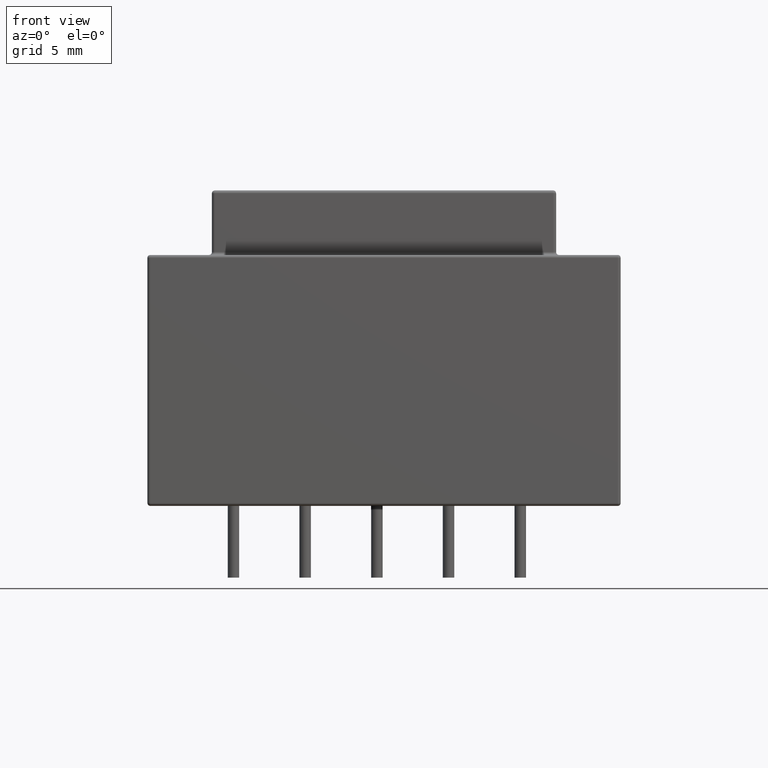
[diagram: clean part render]
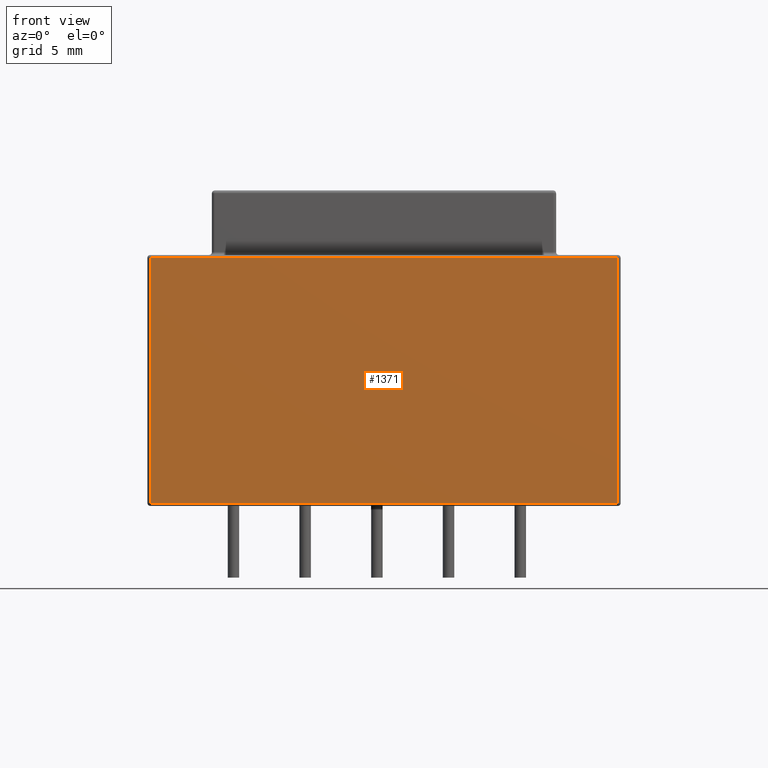
[diagram: same view with one face highlighted and labeled with its STEP entity id]
A machine part, front view. The second image highlights one B-rep face of the part: STEP entity #1371.
In plain terms, the highlighted planar face has unit normal (0, 1, 0).
Its self-contained STEP definition (entity closure, byte-faithful):
#159 = CYLINDRICAL_SURFACE('',#160,0.2);
#160 = AXIS2_PLACEMENT_3D('',#161,#162,#163);
#161 = CARTESIAN_POINT('',(0.,0.2,0.2));
#162 = DIRECTION('',(1.,0.,0.));
#163 = DIRECTION('',(0.,-1.,0.));
#564 = VERTEX_POINT('',#565);
#565 = CARTESIAN_POINT('',(0.2,-2.775557561563E-17,0.2));
#587 = VERTEX_POINT('',#588);
#588 = CARTESIAN_POINT('',(32.8,-2.775557561563E-17,0.2));
#613 = EDGE_CURVE('',#564,#587,#614,.T.);
#614 = SURFACE_CURVE('',#615,(#619,#626),.PCURVE_S1.);
#615 = LINE('',#616,#617);
#616 = CARTESIAN_POINT('',(0.,-2.775557561563E-17,0.2));
#617 = VECTOR('',#618,1.);
#618 = DIRECTION('',(1.,0.,0.));
#619 = PCURVE('',#159,#620);
#620 = DEFINITIONAL_REPRESENTATION('',(#621),#625);
#621 = LINE('',#622,#623);
#622 = CARTESIAN_POINT('',(0.,0.));
#623 = VECTOR('',#624,1.);
#624 = DIRECTION('',(0.,1.));
#625 = ( GEOMETRIC_REPRESENTATION_CONTEXT(2) 
PARAMETRIC_REPRESENTATION_CONTEXT() REPRESENTATION_CONTEXT('2D SPACE',''
  ) );
#626 = PCURVE('',#627,#632);
#627 = PLANE('',#628);
#628 = AXIS2_PLACEMENT_3D('',#629,#630,#631);
#629 = CARTESIAN_POINT('',(0.,0.,0.));
#630 = DIRECTION('',(0.,1.,0.));
#631 = DIRECTION('',(0.,0.,1.));
#632 = DEFINITIONAL_REPRESENTATION('',(#633),#637);
#633 = LINE('',#634,#635);
#634 = CARTESIAN_POINT('',(0.2,0.));
#635 = VECTOR('',#636,1.);
#636 = DIRECTION('',(0.,1.));
#637 = ( GEOMETRIC_REPRESENTATION_CONTEXT(2) 
PARAMETRIC_REPRESENTATION_CONTEXT() REPRESENTATION_CONTEXT('2D SPACE',''
  ) );
#1252 = CYLINDRICAL_SURFACE('',#1253,0.2);
#1253 = AXIS2_PLACEMENT_3D('',#1254,#1255,#1256);
#1254 = CARTESIAN_POINT('',(0.2,0.2,0.));
#1255 = DIRECTION('',(0.,0.,1.));
#1256 = DIRECTION('',(-1.,0.,0.));
#1371 = ADVANCED_FACE('',(#1372),#627,.F.);
#1372 = FACE_BOUND('',#1373,.F.);
#1373 = EDGE_LOOP('',(#1374,#1397,#1425,#1451));
#1374 = ORIENTED_EDGE('',*,*,#1375,.T.);
#1375 = EDGE_CURVE('',#564,#1376,#1378,.T.);
#1376 = VERTEX_POINT('',#1377);
#1377 = CARTESIAN_POINT('',(0.2,-2.775557561563E-17,17.3));
#1378 = SURFACE_CURVE('',#1379,(#1383,#1390),.PCURVE_S1.);
#1379 = LINE('',#1380,#1381);
#1380 = CARTESIAN_POINT('',(0.2,-2.775557561563E-17,0.));
#1381 = VECTOR('',#1382,1.);
#1382 = DIRECTION('',(0.,0.,1.));
#1383 = PCURVE('',#627,#1384);
#1384 = DEFINITIONAL_REPRESENTATION('',(#1385),#1389);
#1385 = LINE('',#1386,#1387);
#1386 = CARTESIAN_POINT('',(0.,0.2));
#1387 = VECTOR('',#1388,1.);
#1388 = DIRECTION('',(1.,0.));
#1389 = ( GEOMETRIC_REPRESENTATION_CONTEXT(2) 
PARAMETRIC_REPRESENTATION_CONTEXT() REPRESENTATION_CONTEXT('2D SPACE',''
  ) );
#1390 = PCURVE('',#1252,#1391);
#1391 = DEFINITIONAL_REPRESENTATION('',(#1392),#1396);
#1392 = LINE('',#1393,#1394);
#1393 = CARTESIAN_POINT('',(1.570796326795,0.));
#1394 = VECTOR('',#1395,1.);
#1395 = DIRECTION('',(0.,1.));
#1396 = ( GEOMETRIC_REPRESENTATION_CONTEXT(2) 
PARAMETRIC_REPRESENTATION_CONTEXT() REPRESENTATION_CONTEXT('2D SPACE',''
  ) );
#1397 = ORIENTED_EDGE('',*,*,#1398,.T.);
#1398 = EDGE_CURVE('',#1376,#1399,#1401,.T.);
#1399 = VERTEX_POINT('',#1400);
#1400 = CARTESIAN_POINT('',(32.8,-2.775557561563E-17,17.3));
#1401 = SURFACE_CURVE('',#1402,(#1406,#1413),.PCURVE_S1.);
#1402 = LINE('',#1403,#1404);
#1403 = CARTESIAN_POINT('',(0.,-2.775557561563E-17,17.3));
#1404 = VECTOR('',#1405,1.);
#1405 = DIRECTION('',(1.,0.,0.));
#1406 = PCURVE('',#627,#1407);
#1407 = DEFINITIONAL_REPRESENTATION('',(#1408),#1412);
#1408 = LINE('',#1409,#1410);
#1409 = CARTESIAN_POINT('',(17.3,0.));
#1410 = VECTOR('',#1411,1.);
#1411 = DIRECTION('',(0.,1.));
#1412 = ( GEOMETRIC_REPRESENTATION_CONTEXT(2) 
PARAMETRIC_REPRESENTATION_CONTEXT() REPRESENTATION_CONTEXT('2D SPACE',''
  ) );
#1413 = PCURVE('',#1414,#1419);
#1414 = CYLINDRICAL_SURFACE('',#1415,0.2);
#1415 = AXIS2_PLACEMENT_3D('',#1416,#1417,#1418);
#1416 = CARTESIAN_POINT('',(0.,0.2,17.3));
#1417 = DIRECTION('',(1.,0.,0.));
#1418 = DIRECTION('',(0.,-1.,0.));
#1419 = DEFINITIONAL_REPRESENTATION('',(#1420),#1424);
#1420 = LINE('',#1421,#1422);
#1421 = CARTESIAN_POINT('',(-0.,0.));
#1422 = VECTOR('',#1423,1.);
#1423 = DIRECTION('',(-0.,1.));
#1424 = ( GEOMETRIC_REPRESENTATION_CONTEXT(2) 
PARAMETRIC_REPRESENTATION_CONTEXT() REPRESENTATION_CONTEXT('2D SPACE',''
  ) );
#1425 = ORIENTED_EDGE('',*,*,#1426,.F.);
#1426 = EDGE_CURVE('',#587,#1399,#1427,.T.);
#1427 = SURFACE_CURVE('',#1428,(#1432,#1439),.PCURVE_S1.);
#1428 = LINE('',#1429,#1430);
#1429 = CARTESIAN_POINT('',(32.8,-2.775557561563E-17,0.));
#1430 = VECTOR('',#1431,1.);
#1431 = DIRECTION('',(0.,0.,1.));
#1432 = PCURVE('',#627,#1433);
#1433 = DEFINITIONAL_REPRESENTATION('',(#1434),#1438);
#1434 = LINE('',#1435,#1436);
#1435 = CARTESIAN_POINT('',(0.,32.8));
#1436 = VECTOR('',#1437,1.);
#1437 = DIRECTION('',(1.,0.));
#1438 = ( GEOMETRIC_REPRESENTATION_CONTEXT(2) 
PARAMETRIC_REPRESENTATION_CONTEXT() REPRESENTATION_CONTEXT('2D SPACE',''
  ) );
#1439 = PCURVE('',#1440,#1445);
#1440 = CYLINDRICAL_SURFACE('',#1441,0.2);
#1441 = AXIS2_PLACEMENT_3D('',#1442,#1443,#1444);
#1442 = CARTESIAN_POINT('',(32.8,0.2,0.));
#1443 = DIRECTION('',(0.,0.,1.));
#1444 = DIRECTION('',(0.,-1.,0.));
#1445 = DEFINITIONAL_REPRESENTATION('',(#1446),#1450);
#1446 = LINE('',#1447,#1448);
#1447 = CARTESIAN_POINT('',(0.,0.));
#1448 = VECTOR('',#1449,1.);
#1449 = DIRECTION('',(0.,1.));
#1450 = ( GEOMETRIC_REPRESENTATION_CONTEXT(2) 
PARAMETRIC_REPRESENTATION_CONTEXT() REPRESENTATION_CONTEXT('2D SPACE',''
  ) );
#1451 = ORIENTED_EDGE('',*,*,#613,.F.);